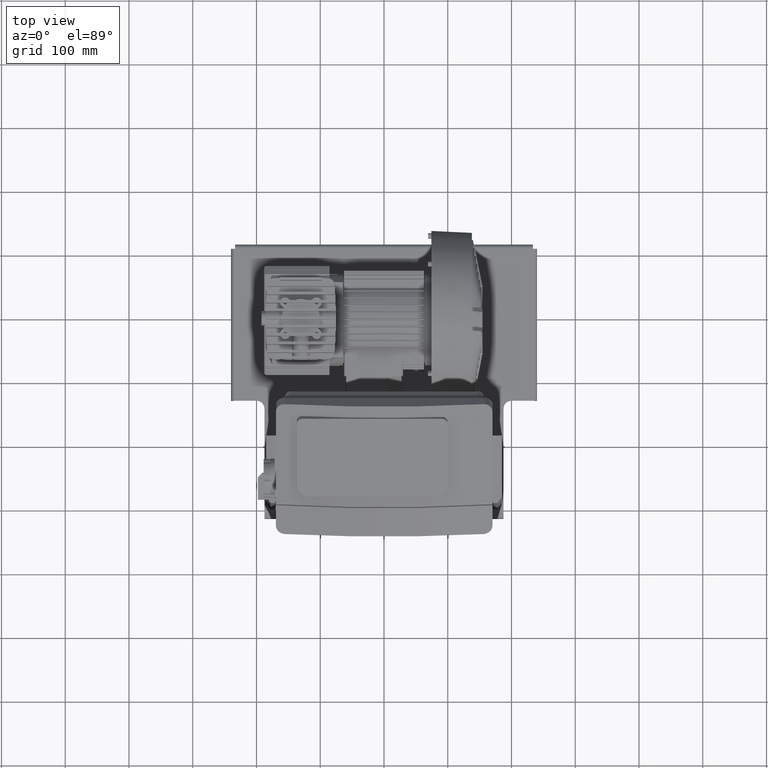
[diagram: clean part render]
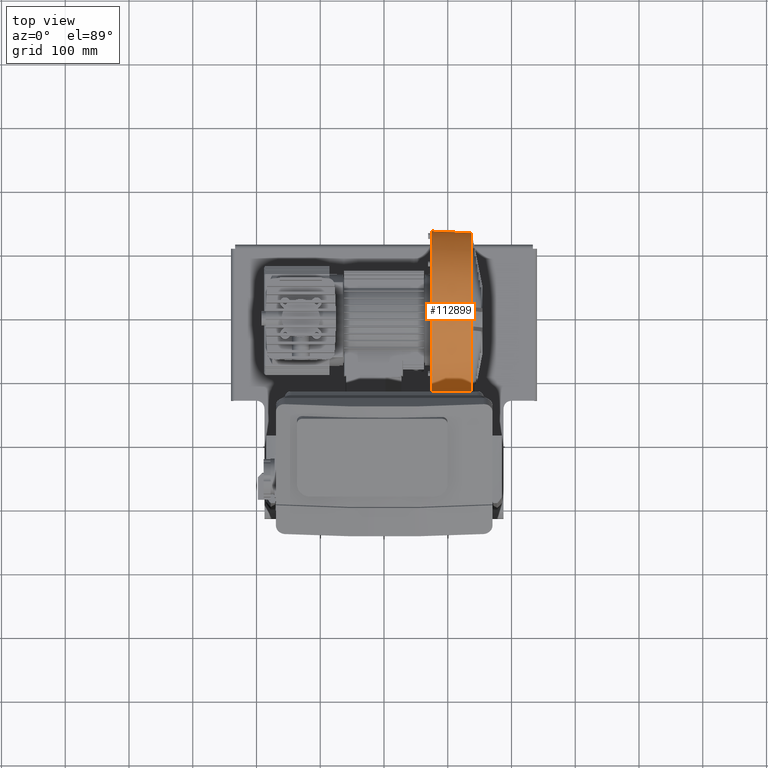
[diagram: same view with one face highlighted and labeled with its STEP entity id]
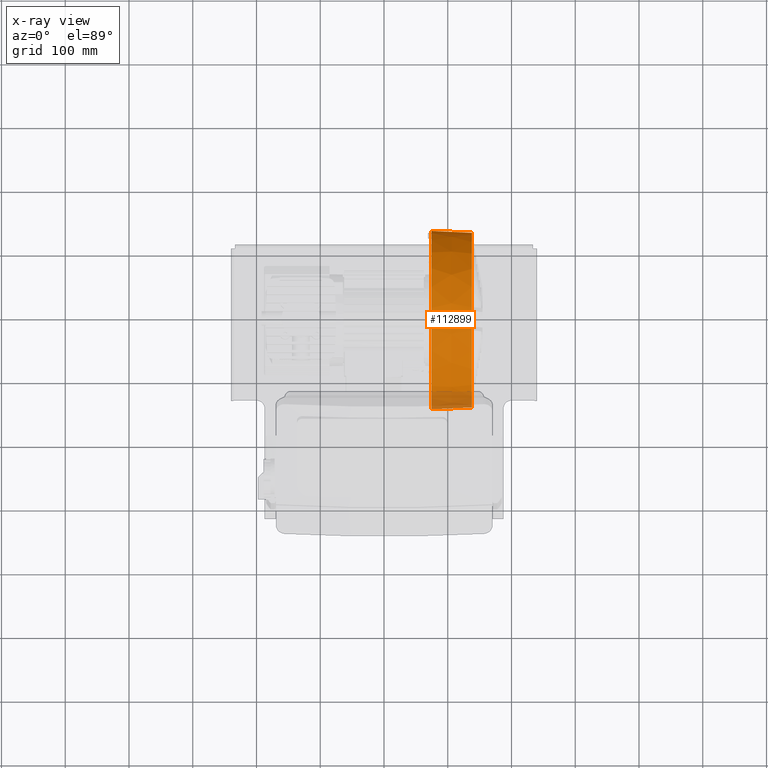
[diagram: x-ray of the same camera — body ghosted, the highlighted face saturated]
A machine part, top view. The second image highlights one B-rep face of the part: STEP entity #112899.
The next image is the same camera in x-ray: the body ghosted, the highlighted face saturated — about 9% of this face is hidden behind the body in this view.
In plain terms, the highlighted conical surface has half-angle 2.705 deg.
Its self-contained STEP definition (entity closure, byte-faithful):
#112822=CARTESIAN_POINT('',(106.04999999991695,296.00000000000006,155.0));
#112823=DIRECTION('',(-1.0,1.224627E-016,-6.748919E-032));
#112824=DIRECTION('',(0.0,1.0,0.0));
#112825=AXIS2_PLACEMENT_3D('',#112822,#112823,#112824);
#112826=CONICAL_SURFACE('',#112825,138.49999999999997,2.704875985735673);
#112827=CARTESIAN_POINT('',(74.299999999916977,436.0,155.00000000000003));
#112828=VERTEX_POINT('',#112827);
#112829=CARTESIAN_POINT('',(137.79999999991699,433.0,155.0));
#112830=VERTEX_POINT('',#112829);
#112831=CARTESIAN_POINT('',(74.299999999916977,436.0,155.0));
#112832=DIRECTION('',(0.998885862491398,-0.04719145807046,0.0));
#112833=VECTOR('',#112832,63.570826642415163);
#112834=LINE('',#112831,#112833);
#112835=EDGE_CURVE('',#112828,#112830,#112834,.T.);
#112836=ORIENTED_EDGE('',*,*,#112835,.F.);
#112837=CARTESIAN_POINT('',(74.299999999916935,156.00000000000009,155.00000000000003));
#112838=VERTEX_POINT('',#112837);
#112839=CARTESIAN_POINT('',(74.299999999916949,296.00000000000006,155.0));
#112840=DIRECTION('',(-1.0,0.0,0.0));
#112841=DIRECTION('',(0.0,1.0,0.0));
#112842=AXIS2_PLACEMENT_3D('',#112839,#112840,#112841);
#112843=CIRCLE('',#112842,140.0);
#112844=EDGE_CURVE('',#112838,#112828,#112843,.T.);
#112845=ORIENTED_EDGE('',*,*,#112844,.F.);
#112846=CARTESIAN_POINT('',(137.79999999991696,159.00000000000009,155.00000000000003));
#112847=VERTEX_POINT('',#112846);
#112848=CARTESIAN_POINT('',(74.299999999916935,156.00000000000009,155.00000000000003));
#112849=DIRECTION('',(0.998885862491398,0.04719145807046,0.0));
#112850=VECTOR('',#112849,63.570826642415177);
#112851=LINE('',#112848,#112850);
#112852=EDGE_CURVE('',#112838,#112847,#112851,.T.);
#112853=ORIENTED_EDGE('',*,*,#112852,.T.);
#112854=CARTESIAN_POINT('',(137.79999999991696,277.90000000000003,290.79907952559915));
#112855=VERTEX_POINT('',#112854);
#112856=CARTESIAN_POINT('',(137.79999999991696,296.0,155.0));
#112857=DIRECTION('',(-1.0,0.0,0.0));
#112858=DIRECTION('',(0.0,1.0,0.0));
#112859=AXIS2_PLACEMENT_3D('',#112856,#112857,#112858);
#112860=CIRCLE('',#112859,136.99999999999997);
#112861=EDGE_CURVE('',#112847,#112855,#112860,.T.);
#112862=ORIENTED_EDGE('',*,*,#112861,.T.);
#112863=CARTESIAN_POINT('',(137.79999999991696,283.70000000000005,291.44672953207782));
#112864=VERTEX_POINT('',#112863);
#112865=CARTESIAN_POINT('',(137.79999999991696,296.0,155.0));
#112866=DIRECTION('',(-1.0,0.0,0.0));
#112867=DIRECTION('',(0.0,-1.0,0.0));
#112868=AXIS2_PLACEMENT_3D('',#112865,#112866,#112867);
#112869=CIRCLE('',#112868,136.99999999999994);
#112870=EDGE_CURVE('',#112855,#112864,#112869,.T.);
#112871=ORIENTED_EDGE('',*,*,#112870,.T.);
#112872=CARTESIAN_POINT('',(137.79999999991696,308.30000000000001,291.44672953207782));
#112873=VERTEX_POINT('',#112872);
#112874=CARTESIAN_POINT('',(137.79999999991696,296.0,155.0));
#112875=DIRECTION('',(-1.0,0.0,0.0));
#112876=DIRECTION('',(0.0,1.0,0.0));
#112877=AXIS2_PLACEMENT_3D('',#112874,#112875,#112876);
#112878=CIRCLE('',#112877,136.99999999999997);
#112879=EDGE_CURVE('',#112864,#112873,#112878,.T.);
#112880=ORIENTED_EDGE('',*,*,#112879,.T.);
#112881=CARTESIAN_POINT('',(137.79999999991696,314.10000000000002,290.79907952559915));
#112882=VERTEX_POINT('',#112881);
#112883=CARTESIAN_POINT('',(137.79999999991696,296.0,155.0));
#112884=DIRECTION('',(-1.0,0.0,0.0));
#112885=DIRECTION('',(0.0,-1.0,0.0));
#112886=AXIS2_PLACEMENT_3D('',#112883,#112884,#112885);
#112887=CIRCLE('',#112886,136.99999999999994);
#112888=EDGE_CURVE('',#112873,#112882,#112887,.T.);
#112889=ORIENTED_EDGE('',*,*,#112888,.T.);
#112890=CARTESIAN_POINT('',(137.79999999991696,296.0,155.0));
#112891=DIRECTION('',(-1.0,0.0,0.0));
#112892=DIRECTION('',(0.0,1.0,0.0));
#112893=AXIS2_PLACEMENT_3D('',#112890,#112891,#112892);
#112894=CIRCLE('',#112893,136.99999999999997);
#112895=EDGE_CURVE('',#112882,#112830,#112894,.T.);
#112896=ORIENTED_EDGE('',*,*,#112895,.T.);
#112897=EDGE_LOOP('',(#112836,#112845,#112853,#112862,#112871,#112880,#112889,#112896));
#112898=FACE_OUTER_BOUND('',#112897,.T.);
#112899=ADVANCED_FACE('',(#112898),#112826,.T.);